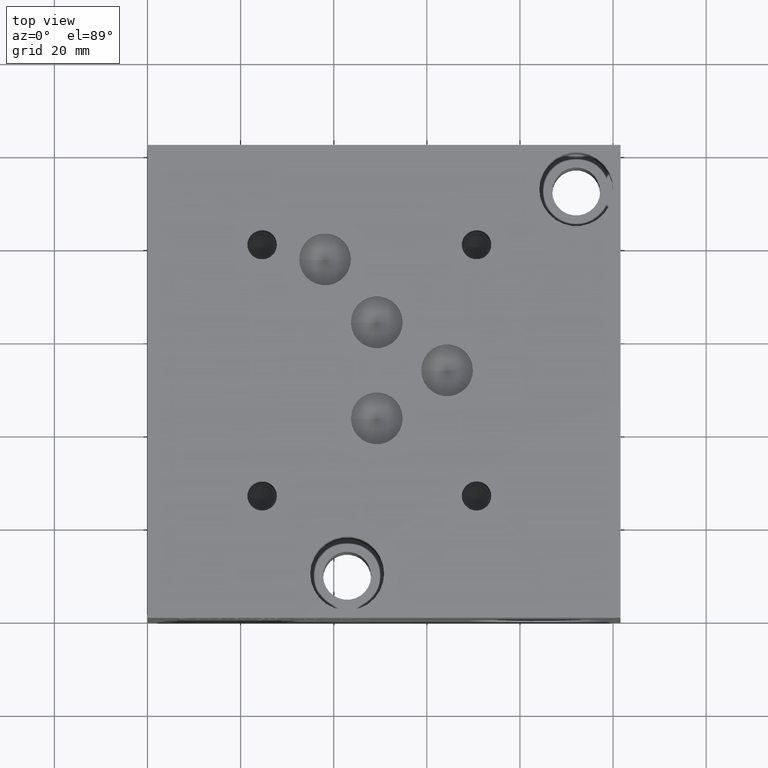
[diagram: clean part render]
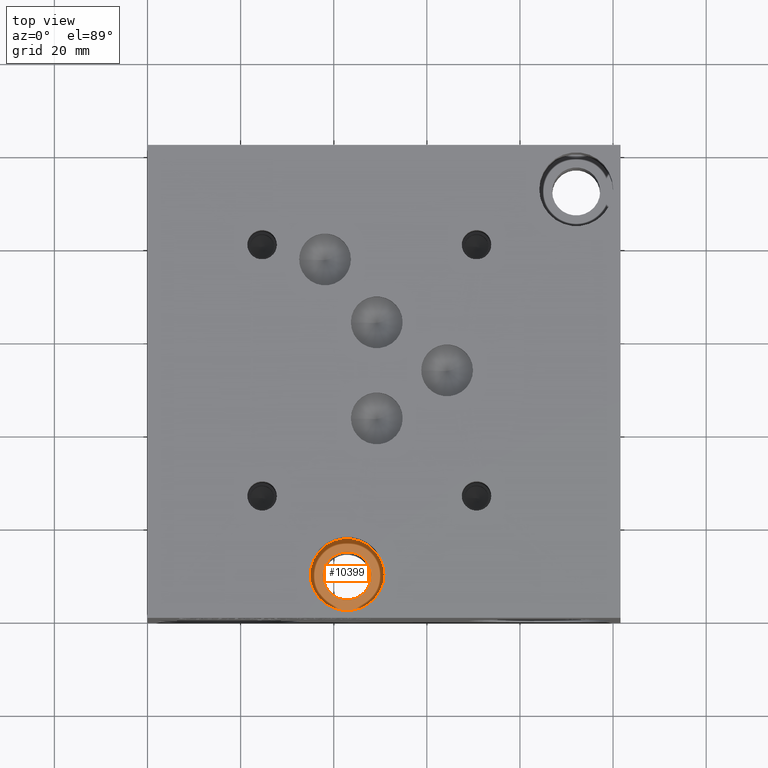
[diagram: same view with one face highlighted and labeled with its STEP entity id]
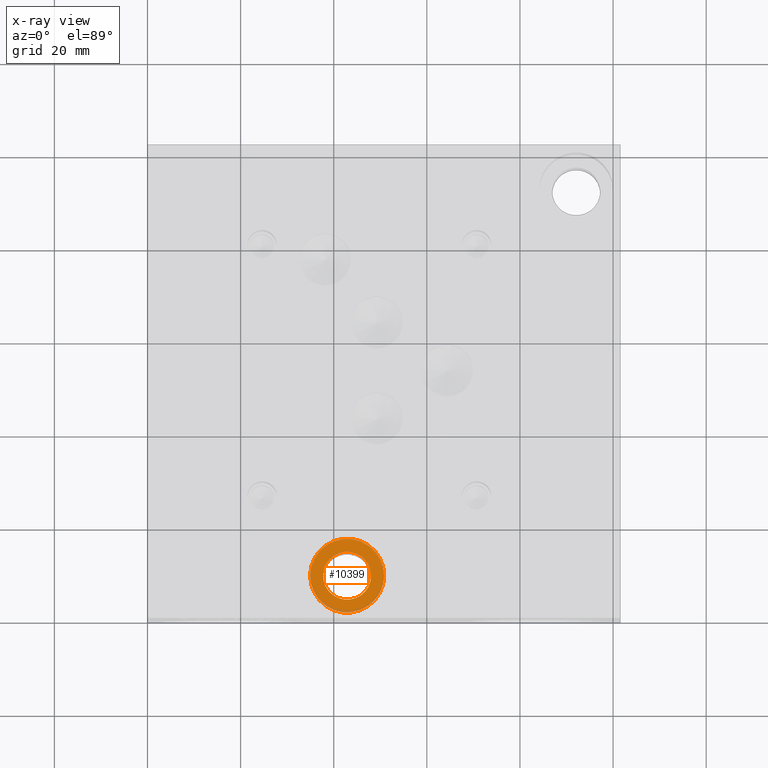
[diagram: x-ray of the same camera — body ghosted, the highlighted face saturated]
A machine part, top view. The second image highlights one B-rep face of the part: STEP entity #10399.
The next image is the same camera in x-ray: the body ghosted, the highlighted face saturated — about 7% of this face is hidden behind the body in this view.
In plain terms, the highlighted planar face has unit normal (0, 0, 1).
Its self-contained STEP definition (entity closure, byte-faithful):
#233=CIRCLE('',#10924,7.9375);
#234=CIRCLE('',#10925,7.9375);
#235=CIRCLE('',#10926,5.1562);
#338=FACE_BOUND('',#1740,.T.);
#638=PLANE('',#10923);
#1150=FACE_OUTER_BOUND('',#1739,.T.);
#1739=EDGE_LOOP('',(#9134,#9135));
#1740=EDGE_LOOP('',(#9136));
#4919=VERTEX_POINT('',#17961);
#4920=VERTEX_POINT('',#17962);
#4921=VERTEX_POINT('',#17965);
#6350=EDGE_CURVE('',#4919,#4920,#233,.T.);
#6351=EDGE_CURVE('',#4920,#4919,#234,.T.);
#6352=EDGE_CURVE('',#4921,#4921,#235,.T.);
#9134=ORIENTED_EDGE('',*,*,#6350,.T.);
#9135=ORIENTED_EDGE('',*,*,#6351,.T.);
#9136=ORIENTED_EDGE('',*,*,#6352,.F.);
#10399=ADVANCED_FACE('',(#1150,#338),#638,.T.);
#10923=AXIS2_PLACEMENT_3D('',#17960,#12874,#12875);
#10924=AXIS2_PLACEMENT_3D('',#17963,#12876,#12877);
#10925=AXIS2_PLACEMENT_3D('',#17964,#12878,#12879);
#10926=AXIS2_PLACEMENT_3D('',#17966,#12880,#12881);
#12874=DIRECTION('center_axis',(0.,0.,1.));
#12875=DIRECTION('ref_axis',(1.,0.,0.));
#12876=DIRECTION('center_axis',(0.,0.,1.));
#12877=DIRECTION('ref_axis',(1.,0.,0.));
#12878=DIRECTION('center_axis',(0.,0.,1.));
#12879=DIRECTION('ref_axis',(1.,0.,0.));
#12880=DIRECTION('center_axis',(0.,0.,1.));
#12881=DIRECTION('ref_axis',(1.,0.,0.));
#17960=CARTESIAN_POINT('Origin',(42.8752,9.525,36.576));
#17961=CARTESIAN_POINT('',(50.8127,9.525,36.576));
#17962=CARTESIAN_POINT('',(34.9377,9.525,36.576));
#17963=CARTESIAN_POINT('Origin',(42.8752,9.525,36.576));
#17964=CARTESIAN_POINT('Origin',(42.8752,9.525,36.576));
#17965=CARTESIAN_POINT('',(37.719,9.525,36.576));
#17966=CARTESIAN_POINT('Origin',(42.8752,9.525,36.576));